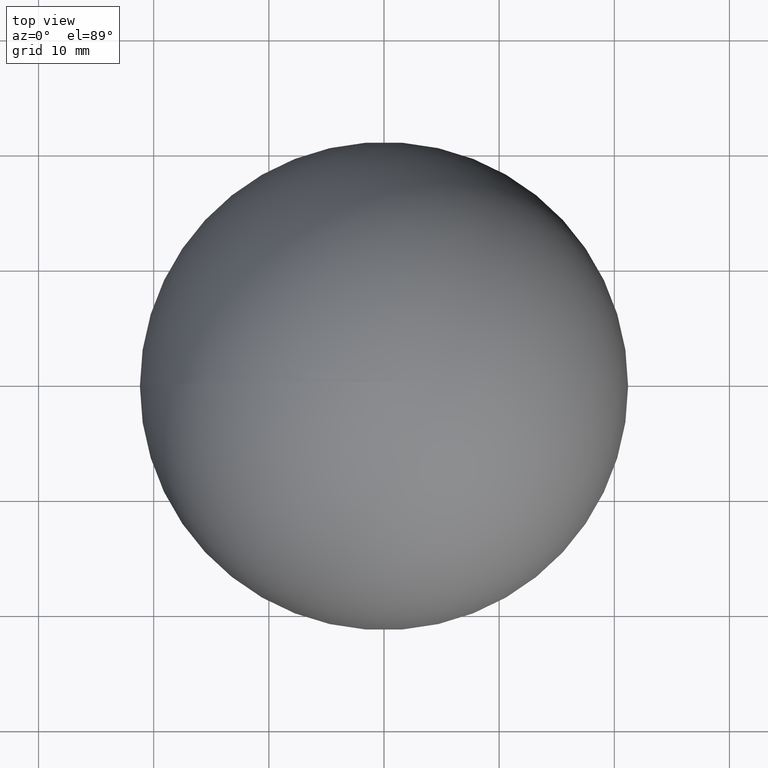
[diagram: clean part render]
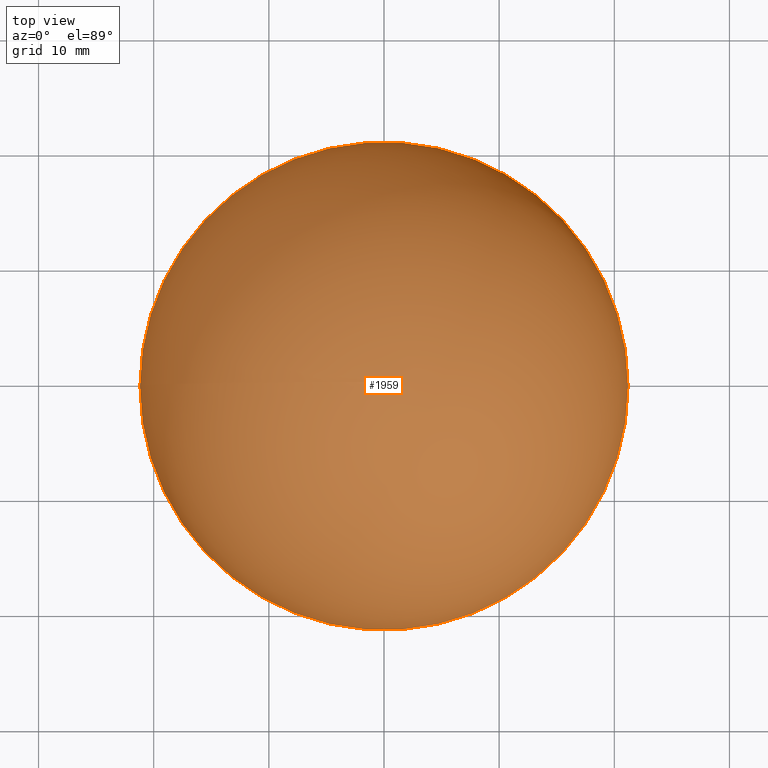
[diagram: same view with one face highlighted and labeled with its STEP entity id]
A machine part, top view. The second image highlights one B-rep face of the part: STEP entity #1959.
In plain terms, the highlighted spherical surface has radius 21.2 mm.
Its self-contained STEP definition (entity closure, byte-faithful):
#407 = CARTESIAN_POINT ( 'NONE',  ( 0.000000000000000000, 0.000000000000000000, 0.000000000000000000 ) ) ;
#673 = DIRECTION ( 'NONE',  ( -1.000000000000000000, 0.000000000000000000, -6.982962677686266711E-15 ) ) ;
#743 = FACE_OUTER_BOUND ( 'NONE', #9870, .T. ) ;
#834 = AXIS2_PLACEMENT_3D ( 'NONE', #407, #5351, #4548 ) ;
#1718 = DIRECTION ( 'NONE',  ( -1.000000000000000000, 0.000000000000000000, -6.982962677686266711E-15 ) ) ;
#1959 = ADVANCED_FACE ( 'NONE', ( #743 ), #5332, .T. ) ;
#2106 = DIRECTION ( 'NONE',  ( 6.982962677686266711E-15, 0.000000000000000000, -1.000000000000000000 ) ) ;
#2126 = AXIS2_PLACEMENT_3D ( 'NONE', #2825, #2106, #673 ) ;
#2346 = CARTESIAN_POINT ( 'NONE',  ( 21.19999999999999929, 2.596251214192388770E-15, 1.480388087669488543E-13 ) ) ;
#2825 = CARTESIAN_POINT ( 'NONE',  ( 0.000000000000000000, 0.000000000000000000, 0.000000000000000000 ) ) ;
#4263 = VERTEX_POINT ( 'NONE', #2346 ) ;
#4548 = DIRECTION ( 'NONE',  ( -1.000000000000000000, 0.000000000000000000, -6.982962677686266711E-15 ) ) ;
#4809 = CIRCLE ( 'NONE', #2126, 21.19999999999999929 ) ;
#4862 = CARTESIAN_POINT ( 'NONE',  ( -21.19999999999999929, 0.000000000000000000, -1.480388087669488543E-13 ) ) ;
#5155 = AXIS2_PLACEMENT_3D ( 'NONE', #5763, #5729, #1718 ) ;
#5332 = SPHERICAL_SURFACE ( 'NONE', #5155, 21.19999999999999929 ) ;
#5351 = DIRECTION ( 'NONE',  ( 6.982962677686266711E-15, 0.000000000000000000, -1.000000000000000000 ) ) ;
#5646 = ORIENTED_EDGE ( 'NONE', *, *, #8585, .F. ) ;
#5729 = DIRECTION ( 'NONE',  ( -6.982962677686266711E-15, 0.000000000000000000, 1.000000000000000000 ) ) ;
#5763 = CARTESIAN_POINT ( 'NONE',  ( 0.000000000000000000, 0.000000000000000000, 0.000000000000000000 ) ) ;
#7937 = VERTEX_POINT ( 'NONE', #4862 ) ;
#8585 = EDGE_CURVE ( 'NONE', #4263, #7937, #10614, .T. ) ;
#9870 = EDGE_LOOP ( 'NONE', ( #10121, #5646 ) ) ;
#10121 = ORIENTED_EDGE ( 'NONE', *, *, #10370, .F. ) ;
#10370 = EDGE_CURVE ( 'NONE', #7937, #4263, #4809, .T. ) ;
#10614 = CIRCLE ( 'NONE', #834, 21.19999999999999929 ) ;